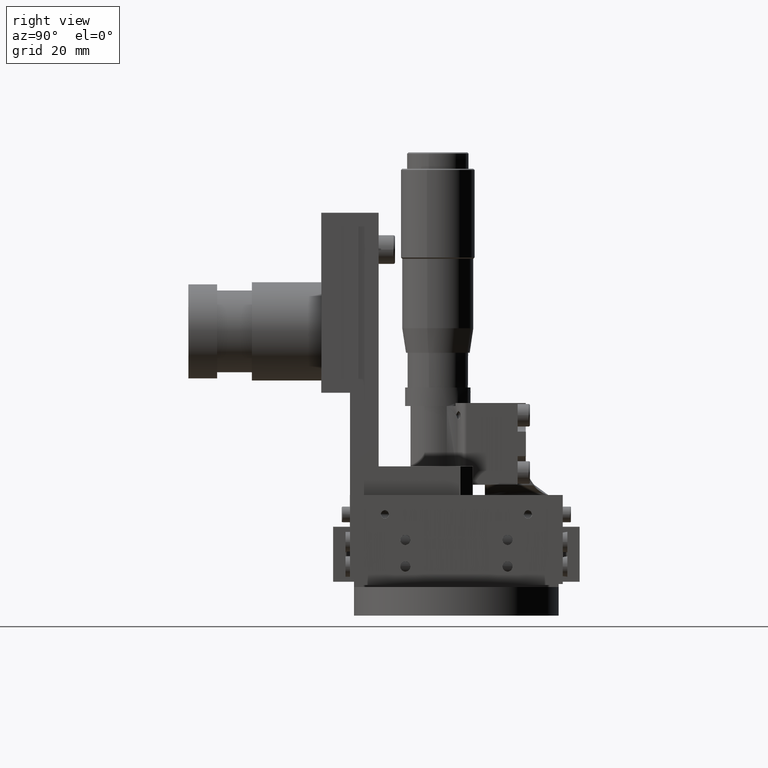
[diagram: clean part render]
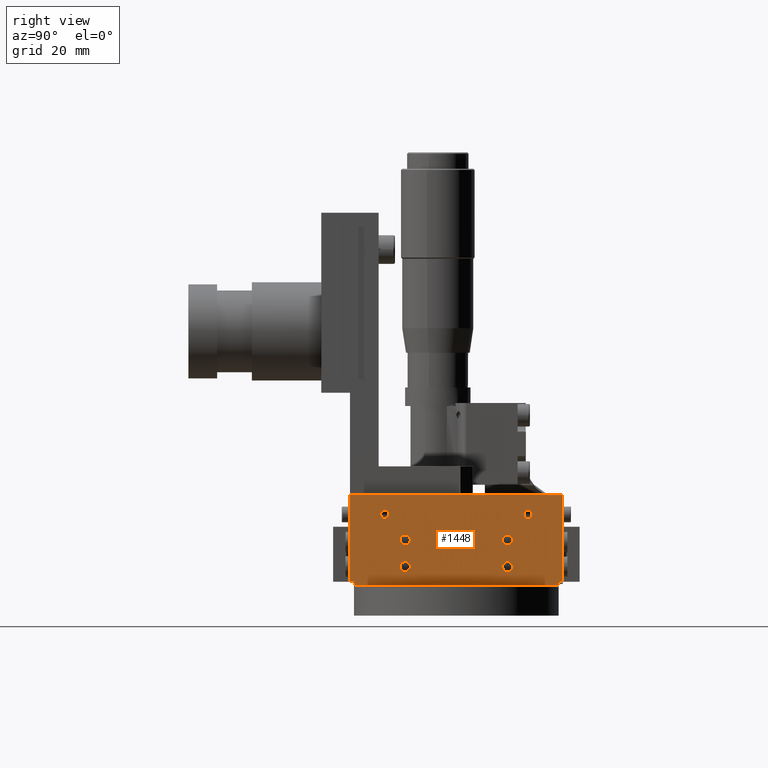
[diagram: same view with one face highlighted and labeled with its STEP entity id]
A machine part, right view. The second image highlights one B-rep face of the part: STEP entity #1448.
In plain terms, the highlighted face is a freeform B-spline surface patch.
Its self-contained STEP definition (entity closure, byte-faithful):
#41=FACE_BOUND('',#3456,.T.);
#42=FACE_BOUND('',#3457,.T.);
#43=FACE_BOUND('',#3458,.T.);
#44=FACE_BOUND('',#3459,.T.);
#45=FACE_BOUND('',#3460,.T.);
#46=FACE_BOUND('',#3461,.T.);
#243=B_SPLINE_SURFACE_WITH_KNOTS('',1,1,((#41421,#41422),(#41423,#41424)),
 .UNSPECIFIED.,.F.,.F.,.F.,(2,2),(2,2),(-2.32000000000012,24.3200000000001),
(-6.32008011386648,56.3200801138666),.UNSPECIFIED.);
#244=B_SPLINE_SURFACE_WITH_KNOTS('',1,1,((#41425,#41426),(#41427,#41428)),
 .UNSPECIFIED.,.F.,.F.,.F.,(2,2),(2,2),(-30.1288955808485,30.1288955808485),
(-26.260150418331,-12.7398495816685),.UNSPECIFIED.);
#257=B_SPLINE_SURFACE_WITH_KNOTS('',1,1,((#42289,#42290),(#42291,#42292)),
 .UNSPECIFIED.,.F.,.F.,.F.,(2,2),(2,2),(-0.320000000000008,2.32),(-1.2200801138663,
12.2200801138664),.UNSPECIFIED.);
#258=B_SPLINE_SURFACE_WITH_KNOTS('',1,1,((#42293,#42294),(#42295,#42296)),
 .UNSPECIFIED.,.F.,.F.,.F.,(2,2),(2,2),(-0.228094174759248,1.22809417475917),
(-1.12088151995594,11.1208815199555),.UNSPECIFIED.);
#264=B_SPLINE_SURFACE_WITH_KNOTS('',1,1,((#42317,#42318),(#42319,#42320)),
 .UNSPECIFIED.,.F.,.F.,.F.,(2,2),(2,2),(-2.32000000000003,0.319999999999984),
(-51.220080113866,-37.7799198861333),.UNSPECIFIED.);
#267=B_SPLINE_SURFACE_WITH_KNOTS('',1,1,((#42329,#42330),(#42331,#42332)),
 .UNSPECIFIED.,.F.,.F.,.F.,(2,2),(2,2),(-30.3352847922284,33.5048754355034),
(-14.6278947368421,10.8121052631579),.UNSPECIFIED.);
#268=B_SPLINE_SURFACE_WITH_KNOTS('',1,1,((#42333,#42334),(#42335,#42336)),
 .UNSPECIFIED.,.F.,.F.,.F.,(2,2),(2,2),(-0.228094174759257,1.22809417475928),
(-1.12088151995591,11.1208815199556),.UNSPECIFIED.);
#324=B_SPLINE_SURFACE_WITH_KNOTS('',1,1,((#43781,#43782),(#43783,#43784)),
 .UNSPECIFIED.,.F.,.F.,.F.,(2,2),(2,2),(-30.1617532305099,30.16175323051),
(-31.3601504183312,31.3601504183314),.UNSPECIFIED.);
#339=B_SPLINE_SURFACE_WITH_KNOTS('',1,1,((#44237,#44238),(#44239,#44240)),
 .UNSPECIFIED.,.F.,.F.,.F.,(2,2),(2,2),(-17.1278947368444,38.3121052631834),
(-30.3352847922294,33.5048754355035),.UNSPECIFIED.);
#1448=ADVANCED_FACE('',(#2436,#41,#42,#43,#44,#45,#46),#243,.T.);
#2436=FACE_OUTER_BOUND('',#3455,.T.);
#3455=EDGE_LOOP('',(#5705,#5706,#5707,#5708,#5709,#5710,#5711,#5712));
#3456=EDGE_LOOP('',(#5713,#5714));
#3457=EDGE_LOOP('',(#5715,#5716));
#3458=EDGE_LOOP('',(#5717,#5718));
#3459=EDGE_LOOP('',(#5719,#5720));
#3460=EDGE_LOOP('',(#5721,#5722));
#3461=EDGE_LOOP('',(#5723,#5724));
#5705=ORIENTED_EDGE('',*,*,#25772,.T.);
#5706=ORIENTED_EDGE('',*,*,#25773,.T.);
#5707=ORIENTED_EDGE('',*,*,#25774,.T.);
#5708=ORIENTED_EDGE('',*,*,#25775,.T.);
#5709=ORIENTED_EDGE('',*,*,#25776,.T.);
#5710=ORIENTED_EDGE('',*,*,#25777,.T.);
#5711=ORIENTED_EDGE('',*,*,#25778,.T.);
#5712=ORIENTED_EDGE('',*,*,#25779,.T.);
#5713=ORIENTED_EDGE('',*,*,#25780,.T.);
#5714=ORIENTED_EDGE('',*,*,#25781,.T.);
#5715=ORIENTED_EDGE('',*,*,#25782,.T.);
#5716=ORIENTED_EDGE('',*,*,#25783,.T.);
#5717=ORIENTED_EDGE('',*,*,#25784,.T.);
#5718=ORIENTED_EDGE('',*,*,#25785,.T.);
#5719=ORIENTED_EDGE('',*,*,#25786,.T.);
#5720=ORIENTED_EDGE('',*,*,#25787,.T.);
#5721=ORIENTED_EDGE('',*,*,#25788,.T.);
#5722=ORIENTED_EDGE('',*,*,#25789,.T.);
#5723=ORIENTED_EDGE('',*,*,#25790,.T.);
#5724=ORIENTED_EDGE('',*,*,#25791,.T.);
#10163=(
BOUNDED_CURVE()
B_SPLINE_CURVE(2,(#52539,#52540,#52541,#52542,#52543),.UNSPECIFIED.,.F.,
 .F.)
B_SPLINE_CURVE_WITH_KNOTS((3,2,3),(0.,1.5707963267949,3.14159265358979),
 .UNSPECIFIED.)
CURVE()
GEOMETRIC_REPRESENTATION_ITEM()
RATIONAL_B_SPLINE_CURVE((1.,0.707106781186555,1.,0.707106781186555,1.))
REPRESENTATION_ITEM('')
);
#10164=(
BOUNDED_CURVE()
B_SPLINE_CURVE(2,(#52544,#52545,#52546,#52547,#52548),.UNSPECIFIED.,.F.,
 .F.)
B_SPLINE_CURVE_WITH_KNOTS((3,2,3),(0.,1.5707963267949,3.14159265358979),
 .UNSPECIFIED.)
CURVE()
GEOMETRIC_REPRESENTATION_ITEM()
RATIONAL_B_SPLINE_CURVE((1.,0.707106781186548,1.,0.707106781186548,1.))
REPRESENTATION_ITEM('')
);
#10165=(
BOUNDED_CURVE()
B_SPLINE_CURVE(2,(#52549,#52550,#52551,#52552,#52553),.UNSPECIFIED.,.F.,
 .F.)
B_SPLINE_CURVE_WITH_KNOTS((3,2,3),(0.,1.5707963267949,3.14159265358979),
 .UNSPECIFIED.)
CURVE()
GEOMETRIC_REPRESENTATION_ITEM()
RATIONAL_B_SPLINE_CURVE((1.,0.70710678118654,1.,0.70710678118654,1.))
REPRESENTATION_ITEM('')
);
#10166=(
BOUNDED_CURVE()
B_SPLINE_CURVE(2,(#52554,#52555,#52556,#52557,#52558),.UNSPECIFIED.,.F.,
 .F.)
B_SPLINE_CURVE_WITH_KNOTS((3,2,3),(0.,1.5707963267949,3.14159265358979),
 .UNSPECIFIED.)
CURVE()
GEOMETRIC_REPRESENTATION_ITEM()
RATIONAL_B_SPLINE_CURVE((1.,0.707106781186548,1.,0.707106781186548,1.))
REPRESENTATION_ITEM('')
);
#10167=(
BOUNDED_CURVE()
B_SPLINE_CURVE(2,(#52559,#52560,#52561,#52562,#52563),.UNSPECIFIED.,.F.,
 .F.)
B_SPLINE_CURVE_WITH_KNOTS((3,2,3),(0.,1.5707963267949,3.14159265358979),
 .UNSPECIFIED.)
CURVE()
GEOMETRIC_REPRESENTATION_ITEM()
RATIONAL_B_SPLINE_CURVE((1.,0.707106781186555,1.,0.707106781186555,1.))
REPRESENTATION_ITEM('')
);
#10168=(
BOUNDED_CURVE()
B_SPLINE_CURVE(2,(#52564,#52565,#52566,#52567,#52568),.UNSPECIFIED.,.F.,
 .F.)
B_SPLINE_CURVE_WITH_KNOTS((3,2,3),(0.,1.5707963267949,3.14159265358979),
 .UNSPECIFIED.)
CURVE()
GEOMETRIC_REPRESENTATION_ITEM()
RATIONAL_B_SPLINE_CURVE((1.,0.707106781186548,1.,0.707106781186548,1.))
REPRESENTATION_ITEM('')
);
#10169=(
BOUNDED_CURVE()
B_SPLINE_CURVE(2,(#52569,#52570,#52571,#52572,#52573),.UNSPECIFIED.,.F.,
 .F.)
B_SPLINE_CURVE_WITH_KNOTS((3,2,3),(0.,1.5707963267949,3.14159265358979),
 .UNSPECIFIED.)
CURVE()
GEOMETRIC_REPRESENTATION_ITEM()
RATIONAL_B_SPLINE_CURVE((1.,0.70710678118654,1.,0.70710678118654,1.))
REPRESENTATION_ITEM('')
);
#10170=(
BOUNDED_CURVE()
B_SPLINE_CURVE(2,(#52574,#52575,#52576,#52577,#52578),.UNSPECIFIED.,.F.,
 .F.)
B_SPLINE_CURVE_WITH_KNOTS((3,2,3),(0.,1.5707963267949,3.14159265358979),
 .UNSPECIFIED.)
CURVE()
GEOMETRIC_REPRESENTATION_ITEM()
RATIONAL_B_SPLINE_CURVE((1.,0.707106781186548,1.,0.707106781186548,1.))
REPRESENTATION_ITEM('')
);
#10171=(
BOUNDED_CURVE()
B_SPLINE_CURVE(2,(#52579,#52580,#52581,#52582,#52583),.UNSPECIFIED.,.F.,
 .F.)
B_SPLINE_CURVE_WITH_KNOTS((3,2,3),(0.,1.93129408379433,3.86258816758865),
 .UNSPECIFIED.)
CURVE()
GEOMETRIC_REPRESENTATION_ITEM()
RATIONAL_B_SPLINE_CURVE((1.,0.707106781186561,1.,0.707106781186561,1.))
REPRESENTATION_ITEM('')
);
#10172=(
BOUNDED_CURVE()
B_SPLINE_CURVE(2,(#52584,#52585,#52586,#52587,#52588),.UNSPECIFIED.,.F.,
 .F.)
B_SPLINE_CURVE_WITH_KNOTS((3,2,3),(0.,1.93129408379433,3.86258816758865),
 .UNSPECIFIED.)
CURVE()
GEOMETRIC_REPRESENTATION_ITEM()
RATIONAL_B_SPLINE_CURVE((1.,0.707106781186548,1.,0.707106781186548,1.))
REPRESENTATION_ITEM('')
);
#10173=(
BOUNDED_CURVE()
B_SPLINE_CURVE(2,(#52589,#52590,#52591,#52592,#52593),.UNSPECIFIED.,.F.,
 .F.)
B_SPLINE_CURVE_WITH_KNOTS((3,2,3),(0.,1.93129408379433,3.86258816758865),
 .UNSPECIFIED.)
CURVE()
GEOMETRIC_REPRESENTATION_ITEM()
RATIONAL_B_SPLINE_CURVE((1.,0.707106781186542,1.,0.707106781186542,1.))
REPRESENTATION_ITEM('')
);
#10174=(
BOUNDED_CURVE()
B_SPLINE_CURVE(2,(#52594,#52595,#52596,#52597,#52598),.UNSPECIFIED.,.F.,
 .F.)
B_SPLINE_CURVE_WITH_KNOTS((3,2,3),(0.,1.93129408379433,3.86258816758865),
 .UNSPECIFIED.)
CURVE()
GEOMETRIC_REPRESENTATION_ITEM()
RATIONAL_B_SPLINE_CURVE((1.,0.707106781186548,1.,0.707106781186548,1.))
REPRESENTATION_ITEM('')
);
#10175=(
BOUNDED_CURVE()
B_SPLINE_CURVE(2,(#52599,#52600,#52601,#52602,#52603),.UNSPECIFIED.,.F.,
 .F.)
B_SPLINE_CURVE_WITH_KNOTS((3,2,3),(0.,1.93129408379433,3.86258816758865),
 .UNSPECIFIED.)
CURVE()
GEOMETRIC_REPRESENTATION_ITEM()
RATIONAL_B_SPLINE_CURVE((1.,0.707106781186545,1.,0.707106781186545,1.))
REPRESENTATION_ITEM('')
);
#10176=(
BOUNDED_CURVE()
B_SPLINE_CURVE(2,(#52604,#52605,#52606,#52607,#52608),.UNSPECIFIED.,.F.,
 .F.)
B_SPLINE_CURVE_WITH_KNOTS((3,2,3),(0.,1.93129408379433,3.86258816758865),
 .UNSPECIFIED.)
CURVE()
GEOMETRIC_REPRESENTATION_ITEM()
RATIONAL_B_SPLINE_CURVE((1.,0.707106781186548,1.,0.707106781186548,1.))
REPRESENTATION_ITEM('')
);
#10177=(
BOUNDED_CURVE()
B_SPLINE_CURVE(2,(#52609,#52610,#52611,#52612,#52613),.UNSPECIFIED.,.F.,
 .F.)
B_SPLINE_CURVE_WITH_KNOTS((3,2,3),(0.,1.93129408379433,3.86258816758865),
 .UNSPECIFIED.)
CURVE()
GEOMETRIC_REPRESENTATION_ITEM()
RATIONAL_B_SPLINE_CURVE((1.,0.70710678118655,1.,0.70710678118655,1.))
REPRESENTATION_ITEM('')
);
#10178=(
BOUNDED_CURVE()
B_SPLINE_CURVE(2,(#52614,#52615,#52616,#52617,#52618),.UNSPECIFIED.,.F.,
 .F.)
B_SPLINE_CURVE_WITH_KNOTS((3,2,3),(0.,1.93129408379433,3.86258816758865),
 .UNSPECIFIED.)
CURVE()
GEOMETRIC_REPRESENTATION_ITEM()
RATIONAL_B_SPLINE_CURVE((1.,0.707106781186548,1.,0.707106781186548,1.))
REPRESENTATION_ITEM('')
);
#10179=(
BOUNDED_CURVE()
B_SPLINE_CURVE(2,(#52619,#52620,#52621,#52622,#52623),.UNSPECIFIED.,.F.,
 .F.)
B_SPLINE_CURVE_WITH_KNOTS((3,2,3),(0.,1.93129408379433,3.86258816758865),
 .UNSPECIFIED.)
CURVE()
GEOMETRIC_REPRESENTATION_ITEM()
RATIONAL_B_SPLINE_CURVE((1.,0.707106781186548,1.,0.707106781186548,1.))
REPRESENTATION_ITEM('')
);
#10180=(
BOUNDED_CURVE()
B_SPLINE_CURVE(2,(#52624,#52625,#52626,#52627,#52628),.UNSPECIFIED.,.F.,
 .F.)
B_SPLINE_CURVE_WITH_KNOTS((3,2,3),(0.,1.93129408379433,3.86258816758865),
 .UNSPECIFIED.)
CURVE()
GEOMETRIC_REPRESENTATION_ITEM()
RATIONAL_B_SPLINE_CURVE((1.,0.707106781186548,1.,0.707106781186548,1.))
REPRESENTATION_ITEM('')
);
#10181=(
BOUNDED_CURVE()
B_SPLINE_CURVE(2,(#52629,#52630,#52631,#52632,#52633),.UNSPECIFIED.,.F.,
 .F.)
B_SPLINE_CURVE_WITH_KNOTS((3,2,3),(0.,1.93129408379433,3.86258816758865),
 .UNSPECIFIED.)
CURVE()
GEOMETRIC_REPRESENTATION_ITEM()
RATIONAL_B_SPLINE_CURVE((1.,0.707106781186548,1.,0.707106781186548,1.))
REPRESENTATION_ITEM('')
);
#10182=(
BOUNDED_CURVE()
B_SPLINE_CURVE(2,(#52634,#52635,#52636,#52637,#52638),.UNSPECIFIED.,.F.,
 .F.)
B_SPLINE_CURVE_WITH_KNOTS((3,2,3),(0.,1.93129408379433,3.86258816758865),
 .UNSPECIFIED.)
CURVE()
GEOMETRIC_REPRESENTATION_ITEM()
RATIONAL_B_SPLINE_CURVE((1.,0.707106781186548,1.,0.707106781186548,1.))
REPRESENTATION_ITEM('')
);
#10183=(
BOUNDED_CURVE()
B_SPLINE_CURVE(2,(#52639,#52640,#52641,#52642,#52643),.UNSPECIFIED.,.F.,
 .F.)
B_SPLINE_CURVE_WITH_KNOTS((3,2,3),(0.,1.93129408379433,3.86258816758865),
 .UNSPECIFIED.)
CURVE()
GEOMETRIC_REPRESENTATION_ITEM()
RATIONAL_B_SPLINE_CURVE((1.,0.707106781186559,1.,0.707106781186559,1.))
REPRESENTATION_ITEM('')
);
#10184=(
BOUNDED_CURVE()
B_SPLINE_CURVE(2,(#52644,#52645,#52646,#52647,#52648),.UNSPECIFIED.,.F.,
 .F.)
B_SPLINE_CURVE_WITH_KNOTS((3,2,3),(0.,1.93129408379433,3.86258816758865),
 .UNSPECIFIED.)
CURVE()
GEOMETRIC_REPRESENTATION_ITEM()
RATIONAL_B_SPLINE_CURVE((1.,0.707106781186548,1.,0.707106781186548,1.))
REPRESENTATION_ITEM('')
);
#10185=(
BOUNDED_CURVE()
B_SPLINE_CURVE(2,(#52649,#52650,#52651,#52652,#52653),.UNSPECIFIED.,.F.,
 .F.)
B_SPLINE_CURVE_WITH_KNOTS((3,2,3),(0.,1.93129408379433,3.86258816758865),
 .UNSPECIFIED.)
CURVE()
GEOMETRIC_REPRESENTATION_ITEM()
RATIONAL_B_SPLINE_CURVE((1.,0.707106781186536,1.,0.707106781186536,1.))
REPRESENTATION_ITEM('')
);
#10186=(
BOUNDED_CURVE()
B_SPLINE_CURVE(2,(#52654,#52655,#52656,#52657,#52658),.UNSPECIFIED.,.F.,
 .F.)
B_SPLINE_CURVE_WITH_KNOTS((3,2,3),(0.,1.93129408379433,3.86258816758865),
 .UNSPECIFIED.)
CURVE()
GEOMETRIC_REPRESENTATION_ITEM()
RATIONAL_B_SPLINE_CURVE((1.,0.707106781186548,1.,0.707106781186548,1.))
REPRESENTATION_ITEM('')
);
#12967=PCURVE('',#243,#18257);
#12968=PCURVE('',#243,#18258);
#12969=PCURVE('',#243,#18259);
#12970=PCURVE('',#243,#18260);
#12971=PCURVE('',#243,#18261);
#12972=PCURVE('',#243,#18262);
#12973=PCURVE('',#243,#18263);
#12974=PCURVE('',#243,#18264);
#12975=PCURVE('',#243,#18265);
#12976=PCURVE('',#243,#18266);
#12977=PCURVE('',#243,#18267);
#12978=PCURVE('',#243,#18268);
#12979=PCURVE('',#243,#18269);
#12980=PCURVE('',#243,#18270);
#12981=PCURVE('',#243,#18271);
#12982=PCURVE('',#243,#18272);
#12983=PCURVE('',#243,#18273);
#12984=PCURVE('',#243,#18274);
#12985=PCURVE('',#243,#18275);
#12986=PCURVE('',#243,#18276);
#12988=PCURVE('',#244,#18278);
#13158=PCURVE('',#35863,#18448);
#13164=PCURVE('',#35864,#18454);
#13166=PCURVE('',#35865,#18456);
#13172=PCURVE('',#35866,#18462);
#13174=PCURVE('',#35867,#18464);
#13182=PCURVE('',#35868,#18472);
#13184=PCURVE('',#35869,#18474);
#13192=PCURVE('',#35870,#18482);
#13200=PCURVE('',#35874,#18490);
#13210=PCURVE('',#35875,#18500);
#13227=PCURVE('',#35880,#18517);
#13237=PCURVE('',#35881,#18527);
#13264=PCURVE('',#257,#18554);
#13268=PCURVE('',#258,#18558);
#13299=PCURVE('',#264,#18589);
#13328=PCURVE('',#267,#18618);
#13336=PCURVE('',#268,#18626);
#14076=PCURVE('',#324,#19366);
#14306=PCURVE('',#339,#19596);
#18257=DEFINITIONAL_REPRESENTATION('',(#29384),#78139);
#18258=DEFINITIONAL_REPRESENTATION('',(#29386),#78139);
#18259=DEFINITIONAL_REPRESENTATION('',(#29388),#78139);
#18260=DEFINITIONAL_REPRESENTATION('',(#29390),#78139);
#18261=DEFINITIONAL_REPRESENTATION('',(#29392),#78139);
#18262=DEFINITIONAL_REPRESENTATION('',(#29394),#78139);
#18263=DEFINITIONAL_REPRESENTATION('',(#29396),#78139);
#18264=DEFINITIONAL_REPRESENTATION('',(#29398),#78139);
#18265=DEFINITIONAL_REPRESENTATION('',(#10164),#78139);
#18266=DEFINITIONAL_REPRESENTATION('',(#10166),#78139);
#18267=DEFINITIONAL_REPRESENTATION('',(#10168),#78139);
#18268=DEFINITIONAL_REPRESENTATION('',(#10170),#78139);
#18269=DEFINITIONAL_REPRESENTATION('',(#10172),#78139);
#18270=DEFINITIONAL_REPRESENTATION('',(#10174),#78139);
#18271=DEFINITIONAL_REPRESENTATION('',(#10176),#78139);
#18272=DEFINITIONAL_REPRESENTATION('',(#10178),#78139);
#18273=DEFINITIONAL_REPRESENTATION('',(#10180),#78139);
#18274=DEFINITIONAL_REPRESENTATION('',(#10182),#78139);
#18275=DEFINITIONAL_REPRESENTATION('',(#10184),#78139);
#18276=DEFINITIONAL_REPRESENTATION('',(#10186),#78139);
#18278=DEFINITIONAL_REPRESENTATION('',(#29401),#78139);
#18448=DEFINITIONAL_REPRESENTATION('',(#29636),#78139);
#18454=DEFINITIONAL_REPRESENTATION('',(#29643),#78139);
#18456=DEFINITIONAL_REPRESENTATION('',(#29646),#78139);
#18462=DEFINITIONAL_REPRESENTATION('',(#29653),#78139);
#18464=DEFINITIONAL_REPRESENTATION('',(#29656),#78139);
#18472=DEFINITIONAL_REPRESENTATION('',(#29665),#78139);
#18474=DEFINITIONAL_REPRESENTATION('',(#29668),#78139);
#18482=DEFINITIONAL_REPRESENTATION('',(#29677),#78139);
#18490=DEFINITIONAL_REPRESENTATION('',(#29689),#78139);
#18500=DEFINITIONAL_REPRESENTATION('',(#29704),#78139);
#18517=DEFINITIONAL_REPRESENTATION('',(#29727),#78139);
#18527=DEFINITIONAL_REPRESENTATION('',(#29742),#78139);
#18554=DEFINITIONAL_REPRESENTATION('',(#29779),#78139);
#18558=DEFINITIONAL_REPRESENTATION('',(#29785),#78139);
#18589=DEFINITIONAL_REPRESENTATION('',(#29831),#78139);
#18618=DEFINITIONAL_REPRESENTATION('',(#29879),#78139);
#18626=DEFINITIONAL_REPRESENTATION('',(#29884),#78139);
#19366=DEFINITIONAL_REPRESENTATION('',(#30696),#78139);
#19596=DEFINITIONAL_REPRESENTATION('',(#30939),#78139);
#22993=SURFACE_CURVE('',#29383,(#12967,#14076),.PCURVE_S1.);
#22994=SURFACE_CURVE('',#29385,(#12968,#14306),.PCURVE_S1.);
#22995=SURFACE_CURVE('',#29387,(#12969,#13268),.PCURVE_S1.);
#22996=SURFACE_CURVE('',#29389,(#12970,#13264),.PCURVE_S1.);
#22997=SURFACE_CURVE('',#29391,(#12971,#12988),.PCURVE_S1.);
#22998=SURFACE_CURVE('',#29393,(#12972,#13299),.PCURVE_S1.);
#22999=SURFACE_CURVE('',#29395,(#12973,#13336),.PCURVE_S1.);
#23000=SURFACE_CURVE('',#29397,(#12974,#13328),.PCURVE_S1.);
#23001=SURFACE_CURVE('',#10163,(#12975,#13227),.PCURVE_S1.);
#23002=SURFACE_CURVE('',#10165,(#12976,#13237),.PCURVE_S1.);
#23003=SURFACE_CURVE('',#10167,(#12977,#13200),.PCURVE_S1.);
#23004=SURFACE_CURVE('',#10169,(#12978,#13210),.PCURVE_S1.);
#23005=SURFACE_CURVE('',#10171,(#12979,#13184),.PCURVE_S1.);
#23006=SURFACE_CURVE('',#10173,(#12980,#13192),.PCURVE_S1.);
#23007=SURFACE_CURVE('',#10175,(#12981,#13174),.PCURVE_S1.);
#23008=SURFACE_CURVE('',#10177,(#12982,#13182),.PCURVE_S1.);
#23009=SURFACE_CURVE('',#10179,(#12983,#13166),.PCURVE_S1.);
#23010=SURFACE_CURVE('',#10181,(#12984,#13172),.PCURVE_S1.);
#23011=SURFACE_CURVE('',#10183,(#12985,#13158),.PCURVE_S1.);
#23012=SURFACE_CURVE('',#10185,(#12986,#13164),.PCURVE_S1.);
#25772=EDGE_CURVE('',#34393,#34394,#22993,.T.);
#25773=EDGE_CURVE('',#34394,#34395,#22994,.T.);
#25774=EDGE_CURVE('',#34395,#34396,#22995,.T.);
#25775=EDGE_CURVE('',#34396,#34397,#22996,.T.);
#25776=EDGE_CURVE('',#34397,#34398,#22997,.T.);
#25777=EDGE_CURVE('',#34398,#34399,#22998,.T.);
#25778=EDGE_CURVE('',#34399,#34400,#22999,.T.);
#25779=EDGE_CURVE('',#34400,#34393,#23000,.T.);
#25780=EDGE_CURVE('',#34402,#34401,#23001,.T.);
#25781=EDGE_CURVE('',#34401,#34402,#23002,.T.);
#25782=EDGE_CURVE('',#34404,#34403,#23003,.T.);
#25783=EDGE_CURVE('',#34403,#34404,#23004,.T.);
#25784=EDGE_CURVE('',#34406,#34405,#23005,.T.);
#25785=EDGE_CURVE('',#34405,#34406,#23006,.T.);
#25786=EDGE_CURVE('',#34408,#34407,#23007,.T.);
#25787=EDGE_CURVE('',#34407,#34408,#23008,.T.);
#25788=EDGE_CURVE('',#34410,#34409,#23009,.T.);
#25789=EDGE_CURVE('',#34409,#34410,#23010,.T.);
#25790=EDGE_CURVE('',#34412,#34411,#23011,.T.);
#25791=EDGE_CURVE('',#34411,#34412,#23012,.T.);
#29383=B_SPLINE_CURVE_WITH_KNOTS('',1,(#52507,#52508),.UNSPECIFIED.,.F.,
 .F.,(2,2),(0.,52.0000000000004),.UNSPECIFIED.);
#29384=B_SPLINE_CURVE_WITH_KNOTS('',1,(#52509,#52510),.UNSPECIFIED.,.F.,
 .F.,(2,2),(0.,52.0000000000004),.UNSPECIFIED.);
#29385=B_SPLINE_CURVE_WITH_KNOTS('',1,(#52511,#52512),.UNSPECIFIED.,.F.,
 .F.,(2,2),(0.,21.),.UNSPECIFIED.);
#29386=B_SPLINE_CURVE_WITH_KNOTS('',1,(#52513,#52514),.UNSPECIFIED.,.F.,
 .F.,(2,2),(0.,21.),.UNSPECIFIED.);
#29387=B_SPLINE_CURVE_WITH_KNOTS('',1,(#52515,#52516),.UNSPECIFIED.,.F.,
 .F.,(2,2),(-0.999999999999994,0.),.UNSPECIFIED.);
#29388=B_SPLINE_CURVE_WITH_KNOTS('',1,(#52517,#52518),.UNSPECIFIED.,.F.,
 .F.,(2,2),(-0.999999999999994,0.),.UNSPECIFIED.);
#29389=B_SPLINE_CURVE_WITH_KNOTS('',1,(#52519,#52520),.UNSPECIFIED.,.F.,
 .F.,(2,2),(-1.,0.),.UNSPECIFIED.);
#29390=B_SPLINE_CURVE_WITH_KNOTS('',1,(#52521,#52522),.UNSPECIFIED.,.F.,
 .F.,(2,2),(-1.,0.),.UNSPECIFIED.);
#29391=B_SPLINE_CURVE_WITH_KNOTS('',1,(#52523,#52524),.UNSPECIFIED.,.F.,
 .F.,(2,2),(-50.,0.),.UNSPECIFIED.);
#29392=B_SPLINE_CURVE_WITH_KNOTS('',1,(#52525,#52526),.UNSPECIFIED.,.F.,
 .F.,(2,2),(-50.,0.),.UNSPECIFIED.);
#29393=B_SPLINE_CURVE_WITH_KNOTS('',1,(#52527,#52528),.UNSPECIFIED.,.F.,
 .F.,(2,2),(0.,1.),.UNSPECIFIED.);
#29394=B_SPLINE_CURVE_WITH_KNOTS('',1,(#52529,#52530),.UNSPECIFIED.,.F.,
 .F.,(2,2),(0.,1.),.UNSPECIFIED.);
#29395=B_SPLINE_CURVE_WITH_KNOTS('',1,(#52531,#52532),.UNSPECIFIED.,.F.,
 .F.,(2,2),(-0.999999999999994,0.),.UNSPECIFIED.);
#29396=B_SPLINE_CURVE_WITH_KNOTS('',1,(#52533,#52534),.UNSPECIFIED.,.F.,
 .F.,(2,2),(-0.999999999999994,0.),.UNSPECIFIED.);
#29397=B_SPLINE_CURVE_WITH_KNOTS('',1,(#52535,#52536),.UNSPECIFIED.,.F.,
 .F.,(2,2),(0.,21.),.UNSPECIFIED.);
#29398=B_SPLINE_CURVE_WITH_KNOTS('',1,(#52537,#52538),.UNSPECIFIED.,.F.,
 .F.,(2,2),(0.,21.),.UNSPECIFIED.);
#29401=B_SPLINE_CURVE_WITH_KNOTS('',1,(#52663,#52664),.UNSPECIFIED.,.F.,
 .F.,(2,2),(-50.,0.),.UNSPECIFIED.);
#29636=B_SPLINE_CURVE_WITH_KNOTS('',1,(#53419,#53420),.UNSPECIFIED.,.F.,
 .F.,(2,2),(0.,3.86258816758865),.UNSPECIFIED.);
#29643=B_SPLINE_CURVE_WITH_KNOTS('',1,(#53443,#53444),.UNSPECIFIED.,.F.,
 .F.,(2,2),(0.,3.86258816758865),.UNSPECIFIED.);
#29646=B_SPLINE_CURVE_WITH_KNOTS('',1,(#53449,#53450),.UNSPECIFIED.,.F.,
 .F.,(2,2),(0.,3.86258816758865),.UNSPECIFIED.);
#29653=B_SPLINE_CURVE_WITH_KNOTS('',1,(#53473,#53474),.UNSPECIFIED.,.F.,
 .F.,(2,2),(0.,3.86258816758865),.UNSPECIFIED.);
#29656=B_SPLINE_CURVE_WITH_KNOTS('',1,(#53479,#53480),.UNSPECIFIED.,.F.,
 .F.,(2,2),(0.,3.86258816758865),.UNSPECIFIED.);
#29665=B_SPLINE_CURVE_WITH_KNOTS('',1,(#53513,#53514),.UNSPECIFIED.,.F.,
 .F.,(2,2),(0.,3.86258816758865),.UNSPECIFIED.);
#29668=B_SPLINE_CURVE_WITH_KNOTS('',1,(#53519,#53520),.UNSPECIFIED.,.F.,
 .F.,(2,2),(0.,3.86258816758865),.UNSPECIFIED.);
#29677=B_SPLINE_CURVE_WITH_KNOTS('',1,(#53553,#53554),.UNSPECIFIED.,.F.,
 .F.,(2,2),(0.,3.86258816758865),.UNSPECIFIED.);
#29689=B_SPLINE_CURVE_WITH_KNOTS('',1,(#53608,#53609),.UNSPECIFIED.,.F.,
 .F.,(2,2),(0.,3.14159265358979),.UNSPECIFIED.);
#29704=B_SPLINE_CURVE_WITH_KNOTS('',1,(#53670,#53671),.UNSPECIFIED.,.F.,
 .F.,(2,2),(0.,3.14159265358979),.UNSPECIFIED.);
#29727=B_SPLINE_CURVE_WITH_KNOTS('',1,(#53745,#53746),.UNSPECIFIED.,.F.,
 .F.,(2,2),(0.,3.14159265358979),.UNSPECIFIED.);
#29742=B_SPLINE_CURVE_WITH_KNOTS('',1,(#53807,#53808),.UNSPECIFIED.,.F.,
 .F.,(2,2),(0.,3.14159265358979),.UNSPECIFIED.);
#29779=B_SPLINE_CURVE_WITH_KNOTS('',1,(#53906,#53907),.UNSPECIFIED.,.F.,
 .F.,(2,2),(-1.,0.),.UNSPECIFIED.);
#29785=B_SPLINE_CURVE_WITH_KNOTS('',1,(#53918,#53919),.UNSPECIFIED.,.F.,
 .F.,(2,2),(-0.999999999999994,0.),.UNSPECIFIED.);
#29831=B_SPLINE_CURVE_WITH_KNOTS('',1,(#54010,#54011),.UNSPECIFIED.,.F.,
 .F.,(2,2),(0.,1.),.UNSPECIFIED.);
#29879=B_SPLINE_CURVE_WITH_KNOTS('',1,(#54106,#54107),.UNSPECIFIED.,.F.,
 .F.,(2,2),(0.,21.),.UNSPECIFIED.);
#29884=B_SPLINE_CURVE_WITH_KNOTS('',1,(#54146,#54147),.UNSPECIFIED.,.F.,
 .F.,(2,2),(-0.999999999999994,0.),.UNSPECIFIED.);
#30696=B_SPLINE_CURVE_WITH_KNOTS('',1,(#57131,#57132),.UNSPECIFIED.,.F.,
 .F.,(2,2),(0.,52.0000000000004),.UNSPECIFIED.);
#30939=B_SPLINE_CURVE_WITH_KNOTS('',1,(#57956,#57957),.UNSPECIFIED.,.F.,
 .F.,(2,2),(0.,21.),.UNSPECIFIED.);
#34393=VERTEX_POINT('',#46194);
#34394=VERTEX_POINT('',#46195);
#34395=VERTEX_POINT('',#46196);
#34396=VERTEX_POINT('',#46197);
#34397=VERTEX_POINT('',#46198);
#34398=VERTEX_POINT('',#46199);
#34399=VERTEX_POINT('',#46200);
#34400=VERTEX_POINT('',#46201);
#34401=VERTEX_POINT('',#46202);
#34402=VERTEX_POINT('',#46203);
#34403=VERTEX_POINT('',#46204);
#34404=VERTEX_POINT('',#46205);
#34405=VERTEX_POINT('',#46206);
#34406=VERTEX_POINT('',#46207);
#34407=VERTEX_POINT('',#46208);
#34408=VERTEX_POINT('',#46209);
#34409=VERTEX_POINT('',#46210);
#34410=VERTEX_POINT('',#46211);
#34411=VERTEX_POINT('',#46212);
#34412=VERTEX_POINT('',#46213);
#35863=(
BOUNDED_SURFACE()
B_SPLINE_SURFACE(1,2,((#41901,#41902,#41903,#41904,#41905,#41906,#41907,
#41908,#41909),(#41910,#41911,#41912,#41913,#41914,#41915,#41916,#41917,
#41918)),.UNSPECIFIED.,.F.,.F.,.F.)
B_SPLINE_SURFACE_WITH_KNOTS((2,2),(3,2,2,2,3),(0.,6.24410154287966),(0.,
1.5707963267949,3.14159265358979,4.71238898038469,6.28318530717959),
 .UNSPECIFIED.)
GEOMETRIC_REPRESENTATION_ITEM()
RATIONAL_B_SPLINE_SURFACE(((1.,0.707106781186548,1.,0.707106781186548,1.,
0.707106781186548,1.,0.707106781186548,1.),(1.,0.707106781186548,1.,0.707106781186548,
1.,0.707106781186548,1.,0.707106781186548,1.)))
REPRESENTATION_ITEM('')
SURFACE()
);
#35864=(
BOUNDED_SURFACE()
B_SPLINE_SURFACE(1,2,((#41919,#41920,#41921,#41922,#41923,#41924,#41925,
#41926,#41927),(#41928,#41929,#41930,#41931,#41932,#41933,#41934,#41935,
#41936)),.UNSPECIFIED.,.F.,.F.,.F.)
B_SPLINE_SURFACE_WITH_KNOTS((2,2),(3,2,2,2,3),(0.,6.24410154287966),(0.,
1.5707963267949,3.14159265358979,4.71238898038469,6.28318530717959),
 .UNSPECIFIED.)
GEOMETRIC_REPRESENTATION_ITEM()
RATIONAL_B_SPLINE_SURFACE(((1.,0.707106781186548,1.,0.707106781186548,1.,
0.707106781186548,1.,0.707106781186548,1.),(1.,0.707106781186548,1.,0.707106781186548,
1.,0.707106781186548,1.,0.707106781186548,1.)))
REPRESENTATION_ITEM('')
SURFACE()
);
#35865=(
BOUNDED_SURFACE()
B_SPLINE_SURFACE(1,2,((#41937,#41938,#41939,#41940,#41941,#41942,#41943,
#41944,#41945),(#41946,#41947,#41948,#41949,#41950,#41951,#41952,#41953,
#41954)),.UNSPECIFIED.,.F.,.F.,.F.)
B_SPLINE_SURFACE_WITH_KNOTS((2,2),(3,2,2,2,3),(0.,6.24410154287977),(0.,
1.5707963267949,3.14159265358979,4.71238898038469,6.28318530717959),
 .UNSPECIFIED.)
GEOMETRIC_REPRESENTATION_ITEM()
RATIONAL_B_SPLINE_SURFACE(((1.,0.707106781186548,1.,0.707106781186548,1.,
0.707106781186548,1.,0.707106781186548,1.),(1.,0.707106781186548,1.,0.707106781186548,
1.,0.707106781186548,1.,0.707106781186548,1.)))
REPRESENTATION_ITEM('')
SURFACE()
);
#35866=(
BOUNDED_SURFACE()
B_SPLINE_SURFACE(1,2,((#41955,#41956,#41957,#41958,#41959,#41960,#41961,
#41962,#41963),(#41964,#41965,#41966,#41967,#41968,#41969,#41970,#41971,
#41972)),.UNSPECIFIED.,.F.,.F.,.F.)
B_SPLINE_SURFACE_WITH_KNOTS((2,2),(3,2,2,2,3),(0.,6.24410154287977),(0.,
1.5707963267949,3.14159265358979,4.71238898038469,6.28318530717959),
 .UNSPECIFIED.)
GEOMETRIC_REPRESENTATION_ITEM()
RATIONAL_B_SPLINE_SURFACE(((1.,0.707106781186548,1.,0.707106781186548,1.,
0.707106781186548,1.,0.707106781186548,1.),(1.,0.707106781186548,1.,0.707106781186548,
1.,0.707106781186548,1.,0.707106781186548,1.)))
REPRESENTATION_ITEM('')
SURFACE()
);
#35867=(
BOUNDED_SURFACE()
B_SPLINE_SURFACE(1,2,((#41973,#41974,#41975,#41976,#41977,#41978,#41979,
#41980,#41981),(#41982,#41983,#41984,#41985,#41986,#41987,#41988,#41989,
#41990)),.UNSPECIFIED.,.F.,.F.,.F.)
B_SPLINE_SURFACE_WITH_KNOTS((2,2),(3,2,2,2,3),(0.,6.2443107955857),(0.,
1.5707963267949,3.14159265358979,4.71238898038469,6.28318530717959),
 .UNSPECIFIED.)
GEOMETRIC_REPRESENTATION_ITEM()
RATIONAL_B_SPLINE_SURFACE(((1.,0.707106781186548,1.,0.707106781186548,1.,
0.707106781186548,1.,0.707106781186548,1.),(1.,0.707106781186548,1.,0.707106781186548,
1.,0.707106781186548,1.,0.707106781186548,1.)))
REPRESENTATION_ITEM('')
SURFACE()
);
#35868=(
BOUNDED_SURFACE()
B_SPLINE_SURFACE(1,2,((#41991,#41992,#41993,#41994,#41995,#41996,#41997,
#41998,#41999),(#42000,#42001,#42002,#42003,#42004,#42005,#42006,#42007,
#42008)),.UNSPECIFIED.,.F.,.F.,.F.)
B_SPLINE_SURFACE_WITH_KNOTS((2,2),(3,2,2,2,3),(0.,6.2443107955857),(0.,
1.5707963267949,3.14159265358979,4.71238898038469,6.28318530717959),
 .UNSPECIFIED.)
GEOMETRIC_REPRESENTATION_ITEM()
RATIONAL_B_SPLINE_SURFACE(((1.,0.707106781186548,1.,0.707106781186548,1.,
0.707106781186548,1.,0.707106781186548,1.),(1.,0.707106781186548,1.,0.707106781186548,
1.,0.707106781186548,1.,0.707106781186548,1.)))
REPRESENTATION_ITEM('')
SURFACE()
);
#35869=(
BOUNDED_SURFACE()
B_SPLINE_SURFACE(1,2,((#42009,#42010,#42011,#42012,#42013,#42014,#42015,
#42016,#42017),(#42018,#42019,#42020,#42021,#42022,#42023,#42024,#42025,
#42026)),.UNSPECIFIED.,.F.,.F.,.F.)
B_SPLINE_SURFACE_WITH_KNOTS((2,2),(3,2,2,2,3),(0.,6.24431079558573),(0.,
1.5707963267949,3.14159265358979,4.71238898038469,6.28318530717959),
 .UNSPECIFIED.)
GEOMETRIC_REPRESENTATION_ITEM()
RATIONAL_B_SPLINE_SURFACE(((1.,0.707106781186548,1.,0.707106781186548,1.,
0.707106781186548,1.,0.707106781186548,1.),(1.,0.707106781186548,1.,0.707106781186548,
1.,0.707106781186548,1.,0.707106781186548,1.)))
REPRESENTATION_ITEM('')
SURFACE()
);
#35870=(
BOUNDED_SURFACE()
B_SPLINE_SURFACE(1,2,((#42027,#42028,#42029,#42030,#42031,#42032,#42033,
#42034,#42035),(#42036,#42037,#42038,#42039,#42040,#42041,#42042,#42043,
#42044)),.UNSPECIFIED.,.F.,.F.,.F.)
B_SPLINE_SURFACE_WITH_KNOTS((2,2),(3,2,2,2,3),(0.,6.24431079558573),(0.,
1.5707963267949,3.14159265358979,4.71238898038469,6.28318530717959),
 .UNSPECIFIED.)
GEOMETRIC_REPRESENTATION_ITEM()
RATIONAL_B_SPLINE_SURFACE(((1.,0.707106781186548,1.,0.707106781186548,1.,
0.707106781186548,1.,0.707106781186548,1.),(1.,0.707106781186548,1.,0.707106781186548,
1.,0.707106781186548,1.,0.707106781186548,1.)))
REPRESENTATION_ITEM('')
SURFACE()
);
#35874=(
BOUNDED_SURFACE()
B_SPLINE_SURFACE(1,2,((#42099,#42100,#42101,#42102,#42103,#42104,#42105,
#42106,#42107),(#42108,#42109,#42110,#42111,#42112,#42113,#42114,#42115,
#42116)),.UNSPECIFIED.,.F.,.F.,.F.)
B_SPLINE_SURFACE_WITH_KNOTS((2,2),(3,2,2,2,3),(0.,6.24312841751304),(0.,
1.5707963267949,3.14159265358979,4.71238898038469,6.28318530717959),
 .UNSPECIFIED.)
GEOMETRIC_REPRESENTATION_ITEM()
RATIONAL_B_SPLINE_SURFACE(((1.,0.707106781186548,1.,0.707106781186548,1.,
0.707106781186548,1.,0.707106781186548,1.),(1.,0.707106781186548,1.,0.707106781186548,
1.,0.707106781186548,1.,0.707106781186548,1.)))
REPRESENTATION_ITEM('')
SURFACE()
);
#35875=(
BOUNDED_SURFACE()
B_SPLINE_SURFACE(1,2,((#42117,#42118,#42119,#42120,#42121,#42122,#42123,
#42124,#42125),(#42126,#42127,#42128,#42129,#42130,#42131,#42132,#42133,
#42134)),.UNSPECIFIED.,.F.,.F.,.F.)
B_SPLINE_SURFACE_WITH_KNOTS((2,2),(3,2,2,2,3),(0.,6.24312841751304),(0.,
1.5707963267949,3.14159265358979,4.71238898038469,6.28318530717959),
 .UNSPECIFIED.)
GEOMETRIC_REPRESENTATION_ITEM()
RATIONAL_B_SPLINE_SURFACE(((1.,0.707106781186548,1.,0.707106781186548,1.,
0.707106781186548,1.,0.707106781186548,1.),(1.,0.707106781186548,1.,0.707106781186548,
1.,0.707106781186548,1.,0.707106781186548,1.)))
REPRESENTATION_ITEM('')
SURFACE()
);
#35880=(
BOUNDED_SURFACE()
B_SPLINE_SURFACE(1,2,((#42199,#42200,#42201,#42202,#42203,#42204,#42205,
#42206,#42207),(#42208,#42209,#42210,#42211,#42212,#42213,#42214,#42215,
#42216)),.UNSPECIFIED.,.F.,.F.,.F.)
B_SPLINE_SURFACE_WITH_KNOTS((2,2),(3,2,2,2,3),(0.,6.24306201382383),(0.,
1.5707963267949,3.14159265358979,4.71238898038469,6.28318530717959),
 .UNSPECIFIED.)
GEOMETRIC_REPRESENTATION_ITEM()
RATIONAL_B_SPLINE_SURFACE(((1.,0.707106781186548,1.,0.707106781186548,1.,
0.707106781186548,1.,0.707106781186548,1.),(1.,0.707106781186548,1.,0.707106781186548,
1.,0.707106781186548,1.,0.707106781186548,1.)))
REPRESENTATION_ITEM('')
SURFACE()
);
#35881=(
BOUNDED_SURFACE()
B_SPLINE_SURFACE(1,2,((#42217,#42218,#42219,#42220,#42221,#42222,#42223,
#42224,#42225),(#42226,#42227,#42228,#42229,#42230,#42231,#42232,#42233,
#42234)),.UNSPECIFIED.,.F.,.F.,.F.)
B_SPLINE_SURFACE_WITH_KNOTS((2,2),(3,2,2,2,3),(0.,6.24306201382383),(0.,
1.5707963267949,3.14159265358979,4.71238898038469,6.28318530717959),
 .UNSPECIFIED.)
GEOMETRIC_REPRESENTATION_ITEM()
RATIONAL_B_SPLINE_SURFACE(((1.,0.707106781186548,1.,0.707106781186548,1.,
0.707106781186548,1.,0.707106781186548,1.),(1.,0.707106781186548,1.,0.707106781186548,
1.,0.707106781186548,1.,0.707106781186548,1.)))
REPRESENTATION_ITEM('')
SURFACE()
);
#41421=CARTESIAN_POINT('',(220.091153440163,64.8860449572592,24.2757099897467));
#41422=CARTESIAN_POINT('',(220.132986954359,64.8860449572593,-38.364436268968));
#41423=CARTESIAN_POINT('',(220.091153440163,38.246044957259,24.2757099897467));
#41424=CARTESIAN_POINT('',(220.132986954359,38.2460449572591,-38.364436268968));
#41425=CARTESIAN_POINT('',(221.352099096434,62.5660449572592,23.0853672994045));
#41426=CARTESIAN_POINT('',(207.831801274856,62.5660449572592,23.0763379212079));
#41427=CARTESIAN_POINT('',(221.392341572712,62.5660449572593,-37.1724104245524));
#41428=CARTESIAN_POINT('',(207.872043751134,62.5660449572593,-37.181439802749));
#41901=CARTESIAN_POINT('',(214.497547554016,58.0660449572592,-18.3186152485145));
#41902=CARTESIAN_POINT('',(214.497547554016,56.8365449572592,-18.3186152485145));
#41903=CARTESIAN_POINT('',(214.498368661521,56.8365449572592,-19.5481149743309));
#41904=CARTESIAN_POINT('',(214.499189769026,56.8365449572592,-20.7776147001472));
#41905=CARTESIAN_POINT('',(214.499189769027,58.0660449572592,-20.7776147001472));
#41906=CARTESIAN_POINT('',(214.499189769026,59.2955449572592,-20.7776147001472));
#41907=CARTESIAN_POINT('',(214.498368661521,59.2955449572592,-19.5481149743309));
#41908=CARTESIAN_POINT('',(214.497547554016,59.2955449572592,-18.3186152485145));
#41909=CARTESIAN_POINT('',(214.497547554016,58.0660449572592,-18.3186152485145));
#41910=CARTESIAN_POINT('',(220.741647704434,58.0660449572592,-18.3144451967524));
#41911=CARTESIAN_POINT('',(220.741647704434,56.8365449572592,-18.3144451967524));
#41912=CARTESIAN_POINT('',(220.74246881194,56.8365449572592,-19.5439449225687));
#41913=CARTESIAN_POINT('',(220.743289919445,56.8365449572592,-20.7734446483851));
#41914=CARTESIAN_POINT('',(220.743289919445,58.0660449572592,-20.7734446483851));
#41915=CARTESIAN_POINT('',(220.743289919445,59.2955449572592,-20.7734446483851));
#41916=CARTESIAN_POINT('',(220.74246881194,59.2955449572592,-19.5439449225687));
#41917=CARTESIAN_POINT('',(220.741647704434,59.2955449572592,-18.3144451967524));
#41918=CARTESIAN_POINT('',(220.741647704434,58.0660449572592,-18.3144451967524));
#41919=CARTESIAN_POINT('',(214.497547554016,58.0660449572592,-18.3186152485145));
#41920=CARTESIAN_POINT('',(214.497547554016,56.8365449572592,-18.3186152485145));
#41921=CARTESIAN_POINT('',(214.498368661521,56.8365449572592,-19.5481149743309));
#41922=CARTESIAN_POINT('',(214.499189769026,56.8365449572592,-20.7776147001472));
#41923=CARTESIAN_POINT('',(214.499189769027,58.0660449572592,-20.7776147001472));
#41924=CARTESIAN_POINT('',(214.499189769026,59.2955449572592,-20.7776147001472));
#41925=CARTESIAN_POINT('',(214.498368661521,59.2955449572592,-19.5481149743309));
#41926=CARTESIAN_POINT('',(214.497547554016,59.2955449572592,-18.3186152485145));
#41927=CARTESIAN_POINT('',(214.497547554016,58.0660449572592,-18.3186152485145));
#41928=CARTESIAN_POINT('',(220.741647704434,58.0660449572592,-18.3144451967524));
#41929=CARTESIAN_POINT('',(220.741647704434,56.8365449572592,-18.3144451967524));
#41930=CARTESIAN_POINT('',(220.74246881194,56.8365449572592,-19.5439449225687));
#41931=CARTESIAN_POINT('',(220.743289919445,56.8365449572592,-20.7734446483851));
#41932=CARTESIAN_POINT('',(220.743289919445,58.0660449572592,-20.7734446483851));
#41933=CARTESIAN_POINT('',(220.743289919445,59.2955449572592,-20.7734446483851));
#41934=CARTESIAN_POINT('',(220.74246881194,59.2955449572592,-19.5439449225687));
#41935=CARTESIAN_POINT('',(220.741647704434,59.2955449572592,-18.3144451967524));
#41936=CARTESIAN_POINT('',(220.741647704434,58.0660449572592,-18.3144451967524));
#41937=CARTESIAN_POINT('',(214.480851590099,58.0660449572591,6.68137917638063));
#41938=CARTESIAN_POINT('',(214.480851590099,56.8365449572591,6.68137917638063));
#41939=CARTESIAN_POINT('',(214.481672697604,56.8365449572591,5.45187945056428));
#41940=CARTESIAN_POINT('',(214.482493805109,56.8365449572591,4.22237972474794));
#41941=CARTESIAN_POINT('',(214.482493805109,58.0660449572591,4.22237972474794));
#41942=CARTESIAN_POINT('',(214.482493805109,59.2955449572591,4.22237972474794));
#41943=CARTESIAN_POINT('',(214.481672697604,59.2955449572591,5.45187945056428));
#41944=CARTESIAN_POINT('',(214.480851590099,59.2955449572591,6.68137917638063));
#41945=CARTESIAN_POINT('',(214.480851590099,58.0660449572591,6.68137917638063));
#41946=CARTESIAN_POINT('',(220.724951740518,58.0660449572591,6.68554922814277));
#41947=CARTESIAN_POINT('',(220.724951740518,56.8365449572591,6.68554922814277));
#41948=CARTESIAN_POINT('',(220.725772848023,56.8365449572591,5.45604950232643));
#41949=CARTESIAN_POINT('',(220.726593955528,56.8365449572591,4.22654977651008));
#41950=CARTESIAN_POINT('',(220.726593955528,58.0660449572591,4.22654977651008));
#41951=CARTESIAN_POINT('',(220.726593955528,59.2955449572591,4.22654977651008));
#41952=CARTESIAN_POINT('',(220.725772848023,59.2955449572591,5.45604950232643));
#41953=CARTESIAN_POINT('',(220.724951740518,59.2955449572591,6.68554922814277));
#41954=CARTESIAN_POINT('',(220.724951740518,58.0660449572591,6.68554922814277));
#41955=CARTESIAN_POINT('',(214.480851590099,58.0660449572591,6.68137917638063));
#41956=CARTESIAN_POINT('',(214.480851590099,56.8365449572591,6.68137917638063));
#41957=CARTESIAN_POINT('',(214.481672697604,56.8365449572591,5.45187945056428));
#41958=CARTESIAN_POINT('',(214.482493805109,56.8365449572591,4.22237972474794));
#41959=CARTESIAN_POINT('',(214.482493805109,58.0660449572591,4.22237972474794));
#41960=CARTESIAN_POINT('',(214.482493805109,59.2955449572591,4.22237972474794));
#41961=CARTESIAN_POINT('',(214.481672697604,59.2955449572591,5.45187945056428));
#41962=CARTESIAN_POINT('',(214.480851590099,59.2955449572591,6.68137917638063));
#41963=CARTESIAN_POINT('',(214.480851590099,58.0660449572591,6.68137917638063));
#41964=CARTESIAN_POINT('',(220.724951740518,58.0660449572591,6.68554922814277));
#41965=CARTESIAN_POINT('',(220.724951740518,56.8365449572591,6.68554922814277));
#41966=CARTESIAN_POINT('',(220.725772848023,56.8365449572591,5.45604950232643));
#41967=CARTESIAN_POINT('',(220.726593955528,56.8365449572591,4.22654977651008));
#41968=CARTESIAN_POINT('',(220.726593955528,58.0660449572591,4.22654977651008));
#41969=CARTESIAN_POINT('',(220.726593955528,59.2955449572591,4.22654977651008));
#41970=CARTESIAN_POINT('',(220.725772848023,59.2955449572591,5.45604950232643));
#41971=CARTESIAN_POINT('',(220.724951740518,59.2955449572591,6.68554922814277));
#41972=CARTESIAN_POINT('',(220.724951740518,58.0660449572591,6.68554922814277));
#41973=CARTESIAN_POINT('',(214.497441812665,51.5660449572592,-18.3186153191327));
#41974=CARTESIAN_POINT('',(214.497441812665,50.3365449572592,-18.3186153191327));
#41975=CARTESIAN_POINT('',(214.498262920171,50.3365449572592,-19.548115044949));
#41976=CARTESIAN_POINT('',(214.499084027676,50.3365449572592,-20.7776147707654));
#41977=CARTESIAN_POINT('',(214.499084027676,51.5660449572592,-20.7776147707654));
#41978=CARTESIAN_POINT('',(214.499084027676,52.7955449572592,-20.7776147707654));
#41979=CARTESIAN_POINT('',(214.498262920171,52.7955449572592,-19.548115044949));
#41980=CARTESIAN_POINT('',(214.497441812665,52.7955449572592,-18.3186153191327));
#41981=CARTESIAN_POINT('',(214.497441812665,51.5660449572592,-18.3186153191327));
#41982=CARTESIAN_POINT('',(220.741751215744,51.5660449572592,-18.3144451276235));
#41983=CARTESIAN_POINT('',(220.741751215744,50.3365449572592,-18.3144451276235));
#41984=CARTESIAN_POINT('',(220.742572323249,50.3365449572592,-19.5439448534399));
#41985=CARTESIAN_POINT('',(220.743393430754,50.3365449572592,-20.7734445792562));
#41986=CARTESIAN_POINT('',(220.743393430754,51.5660449572592,-20.7734445792562));
#41987=CARTESIAN_POINT('',(220.743393430754,52.7955449572592,-20.7734445792562));
#41988=CARTESIAN_POINT('',(220.742572323249,52.7955449572592,-19.5439448534399));
#41989=CARTESIAN_POINT('',(220.741751215744,52.7955449572592,-18.3144451276235));
#41990=CARTESIAN_POINT('',(220.741751215744,51.5660449572592,-18.3144451276235));
#41991=CARTESIAN_POINT('',(214.497441812665,51.5660449572592,-18.3186153191327));
#41992=CARTESIAN_POINT('',(214.497441812665,50.3365449572592,-18.3186153191327));
#41993=CARTESIAN_POINT('',(214.498262920171,50.3365449572592,-19.548115044949));
#41994=CARTESIAN_POINT('',(214.499084027676,50.3365449572592,-20.7776147707654));
#41995=CARTESIAN_POINT('',(214.499084027676,51.5660449572592,-20.7776147707654));
#41996=CARTESIAN_POINT('',(214.499084027676,52.7955449572592,-20.7776147707654));
#41997=CARTESIAN_POINT('',(214.498262920171,52.7955449572592,-19.548115044949));
#41998=CARTESIAN_POINT('',(214.497441812665,52.7955449572592,-18.3186153191327));
#41999=CARTESIAN_POINT('',(214.497441812665,51.5660449572592,-18.3186153191327));
#42000=CARTESIAN_POINT('',(220.741751215744,51.5660449572592,-18.3144451276235));
#42001=CARTESIAN_POINT('',(220.741751215744,50.3365449572592,-18.3144451276235));
#42002=CARTESIAN_POINT('',(220.742572323249,50.3365449572592,-19.5439448534399));
#42003=CARTESIAN_POINT('',(220.743393430754,50.3365449572592,-20.7734445792562));
#42004=CARTESIAN_POINT('',(220.743393430754,51.5660449572592,-20.7734445792562));
#42005=CARTESIAN_POINT('',(220.743393430754,52.7955449572592,-20.7734445792562));
#42006=CARTESIAN_POINT('',(220.742572323249,52.7955449572592,-19.5439448534399));
#42007=CARTESIAN_POINT('',(220.741751215744,52.7955449572592,-18.3144451276235));
#42008=CARTESIAN_POINT('',(220.741751215744,51.5660449572592,-18.3144451276235));
#42009=CARTESIAN_POINT('',(214.480745848748,51.5660449572591,6.68137910576244));
#42010=CARTESIAN_POINT('',(214.480745848748,50.3365449572591,6.68137910576244));
#42011=CARTESIAN_POINT('',(214.481566956254,50.3365449572591,5.4518793799461));
#42012=CARTESIAN_POINT('',(214.482388063759,50.3365449572591,4.22237965412975));
#42013=CARTESIAN_POINT('',(214.482388063759,51.5660449572591,4.22237965412975));
#42014=CARTESIAN_POINT('',(214.482388063759,52.7955449572591,4.22237965412975));
#42015=CARTESIAN_POINT('',(214.481566956254,52.7955449572591,5.4518793799461));
#42016=CARTESIAN_POINT('',(214.480745848748,52.7955449572591,6.68137910576244));
#42017=CARTESIAN_POINT('',(214.480745848748,51.5660449572591,6.68137910576244));
#42018=CARTESIAN_POINT('',(220.725055251827,51.5660449572591,6.68554929727161));
#42019=CARTESIAN_POINT('',(220.725055251827,50.3365449572591,6.68554929727161));
#42020=CARTESIAN_POINT('',(220.725876359332,50.3365449572591,5.45604957145526));
#42021=CARTESIAN_POINT('',(220.726697466837,50.3365449572591,4.22654984563892));
#42022=CARTESIAN_POINT('',(220.726697466837,51.5660449572591,4.22654984563892));
#42023=CARTESIAN_POINT('',(220.726697466837,52.7955449572591,4.22654984563892));
#42024=CARTESIAN_POINT('',(220.725876359332,52.7955449572591,5.45604957145526));
#42025=CARTESIAN_POINT('',(220.725055251827,52.7955449572591,6.68554929727161));
#42026=CARTESIAN_POINT('',(220.725055251827,51.5660449572591,6.68554929727161));
#42027=CARTESIAN_POINT('',(214.480745848748,51.5660449572591,6.68137910576244));
#42028=CARTESIAN_POINT('',(214.480745848748,50.3365449572591,6.68137910576244));
#42029=CARTESIAN_POINT('',(214.481566956254,50.3365449572591,5.4518793799461));
#42030=CARTESIAN_POINT('',(214.482388063759,50.3365449572591,4.22237965412975));
#42031=CARTESIAN_POINT('',(214.482388063759,51.5660449572591,4.22237965412975));
#42032=CARTESIAN_POINT('',(214.482388063759,52.7955449572591,4.22237965412975));
#42033=CARTESIAN_POINT('',(214.481566956254,52.7955449572591,5.4518793799461));
#42034=CARTESIAN_POINT('',(214.480745848748,52.7955449572591,6.68137910576244));
#42035=CARTESIAN_POINT('',(214.480745848748,51.5660449572591,6.68137910576244));
#42036=CARTESIAN_POINT('',(220.725055251827,51.5660449572591,6.68554929727161));
#42037=CARTESIAN_POINT('',(220.725055251827,50.3365449572591,6.68554929727161));
#42038=CARTESIAN_POINT('',(220.725876359332,50.3365449572591,5.45604957145526));
#42039=CARTESIAN_POINT('',(220.726697466837,50.3365449572591,4.22654984563892));
#42040=CARTESIAN_POINT('',(220.726697466837,51.5660449572591,4.22654984563892));
#42041=CARTESIAN_POINT('',(220.726697466837,52.7955449572591,4.22654984563892));
#42042=CARTESIAN_POINT('',(220.725876359332,52.7955449572591,5.45604957145526));
#42043=CARTESIAN_POINT('',(220.725055251827,52.7955449572591,6.68554929727161));
#42044=CARTESIAN_POINT('',(220.725055251827,51.5660449572591,6.68554929727161));
#42099=CARTESIAN_POINT('',(214.501625509374,45.3160449572592,-23.5481136912989));
#42100=CARTESIAN_POINT('',(214.501625509374,44.3160449572592,-23.5481136912989));
#42101=CARTESIAN_POINT('',(214.502293347931,44.3160449572592,-24.5481134682947));
#42102=CARTESIAN_POINT('',(214.502961186487,44.3160449572592,-25.5481132452905));
#42103=CARTESIAN_POINT('',(214.502961186487,45.3160449572592,-25.5481132452905));
#42104=CARTESIAN_POINT('',(214.502961186487,46.3160449572592,-25.5481132452905));
#42105=CARTESIAN_POINT('',(214.502293347931,46.3160449572592,-24.5481134682947));
#42106=CARTESIAN_POINT('',(214.501625509374,46.3160449572592,-23.5481136912989));
#42107=CARTESIAN_POINT('',(214.501625509374,45.3160449572592,-23.5481136912989));
#42108=CARTESIAN_POINT('',(220.744752534643,45.3160449572592,-23.5439442894274));
#42109=CARTESIAN_POINT('',(220.744752534643,44.3160449572592,-23.5439442894274));
#42110=CARTESIAN_POINT('',(220.7454203732,44.3160449572592,-24.5439440664232));
#42111=CARTESIAN_POINT('',(220.746088211757,44.3160449572592,-25.543943843419));
#42112=CARTESIAN_POINT('',(220.746088211757,45.3160449572592,-25.543943843419));
#42113=CARTESIAN_POINT('',(220.746088211757,46.3160449572592,-25.543943843419));
#42114=CARTESIAN_POINT('',(220.7454203732,46.3160449572592,-24.5439440664232));
#42115=CARTESIAN_POINT('',(220.744752534643,46.3160449572592,-23.5439442894274));
#42116=CARTESIAN_POINT('',(220.744752534643,45.3160449572592,-23.5439442894274));
#42117=CARTESIAN_POINT('',(214.501625509374,45.3160449572592,-23.5481136912989));
#42118=CARTESIAN_POINT('',(214.501625509374,44.3160449572592,-23.5481136912989));
#42119=CARTESIAN_POINT('',(214.502293347931,44.3160449572592,-24.5481134682947));
#42120=CARTESIAN_POINT('',(214.502961186487,44.3160449572592,-25.5481132452905));
#42121=CARTESIAN_POINT('',(214.502961186487,45.3160449572592,-25.5481132452905));
#42122=CARTESIAN_POINT('',(214.502961186487,46.3160449572592,-25.5481132452905));
#42123=CARTESIAN_POINT('',(214.502293347931,46.3160449572592,-24.5481134682947));
#42124=CARTESIAN_POINT('',(214.501625509374,46.3160449572592,-23.5481136912989));
#42125=CARTESIAN_POINT('',(214.501625509374,45.3160449572592,-23.5481136912989));
#42126=CARTESIAN_POINT('',(220.744752534643,45.3160449572592,-23.5439442894274));
#42127=CARTESIAN_POINT('',(220.744752534643,44.3160449572592,-23.5439442894274));
#42128=CARTESIAN_POINT('',(220.7454203732,44.3160449572592,-24.5439440664232));
#42129=CARTESIAN_POINT('',(220.746088211757,44.3160449572592,-25.543943843419));
#42130=CARTESIAN_POINT('',(220.746088211757,45.3160449572592,-25.543943843419));
#42131=CARTESIAN_POINT('',(220.746088211757,46.3160449572592,-25.543943843419));
#42132=CARTESIAN_POINT('',(220.7454203732,46.3160449572592,-24.5439440664232));
#42133=CARTESIAN_POINT('',(220.744752534643,46.3160449572592,-23.5439442894274));
#42134=CARTESIAN_POINT('',(220.744752534643,45.3160449572592,-23.5439442894274));
#42199=CARTESIAN_POINT('',(214.478312029925,45.3160449572591,11.4518785442058));
#42200=CARTESIAN_POINT('',(214.478312029925,44.3160449572591,11.4518785442058));
#42201=CARTESIAN_POINT('',(214.478979868482,44.3160449572591,10.45187876721));
#42202=CARTESIAN_POINT('',(214.479647707038,44.3160449572591,9.45187899021419));
#42203=CARTESIAN_POINT('',(214.479647707038,45.3160449572591,9.45187899021419));
#42204=CARTESIAN_POINT('',(214.479647707038,46.3160449572591,9.45187899021419));
#42205=CARTESIAN_POINT('',(214.478979868482,46.3160449572591,10.45187876721));
#42206=CARTESIAN_POINT('',(214.478312029925,46.3160449572591,11.4518785442058));
#42207=CARTESIAN_POINT('',(214.478312029925,45.3160449572591,11.4518785442058));
#42208=CARTESIAN_POINT('',(220.72137265152,45.3160449572591,11.4560479017304));
#42209=CARTESIAN_POINT('',(220.72137265152,44.3160449572591,11.4560479017304));
#42210=CARTESIAN_POINT('',(220.722040490076,44.3160449572591,10.4560481247346));
#42211=CARTESIAN_POINT('',(220.722708328633,44.3160449572591,9.45604834773875));
#42212=CARTESIAN_POINT('',(220.722708328633,45.3160449572591,9.45604834773875));
#42213=CARTESIAN_POINT('',(220.722708328633,46.3160449572591,9.45604834773875));
#42214=CARTESIAN_POINT('',(220.722040490076,46.3160449572591,10.4560481247346));
#42215=CARTESIAN_POINT('',(220.72137265152,46.3160449572591,11.4560479017304));
#42216=CARTESIAN_POINT('',(220.72137265152,45.3160449572591,11.4560479017304));
#42217=CARTESIAN_POINT('',(214.478312029925,45.3160449572591,11.4518785442058));
#42218=CARTESIAN_POINT('',(214.478312029925,44.3160449572591,11.4518785442058));
#42219=CARTESIAN_POINT('',(214.478979868482,44.3160449572591,10.45187876721));
#42220=CARTESIAN_POINT('',(214.479647707038,44.3160449572591,9.45187899021419));
#42221=CARTESIAN_POINT('',(214.479647707038,45.3160449572591,9.45187899021419));
#42222=CARTESIAN_POINT('',(214.479647707038,46.3160449572591,9.45187899021419));
#42223=CARTESIAN_POINT('',(214.478979868482,46.3160449572591,10.45187876721));
#42224=CARTESIAN_POINT('',(214.478312029925,46.3160449572591,11.4518785442058));
#42225=CARTESIAN_POINT('',(214.478312029925,45.3160449572591,11.4518785442058));
#42226=CARTESIAN_POINT('',(220.72137265152,45.3160449572591,11.4560479017304));
#42227=CARTESIAN_POINT('',(220.72137265152,44.3160449572591,11.4560479017304));
#42228=CARTESIAN_POINT('',(220.722040490076,44.3160449572591,10.4560481247346));
#42229=CARTESIAN_POINT('',(220.722708328633,44.3160449572591,9.45604834773875));
#42230=CARTESIAN_POINT('',(220.722708328633,45.3160449572591,9.45604834773875));
#42231=CARTESIAN_POINT('',(220.722708328633,46.3160449572591,9.45604834773875));
#42232=CARTESIAN_POINT('',(220.722040490076,46.3160449572591,10.4560481247346));
#42233=CARTESIAN_POINT('',(220.72137265152,46.3160449572591,11.4560479017304));
#42234=CARTESIAN_POINT('',(220.72137265152,45.3160449572591,11.4560479017304));
#42289=CARTESIAN_POINT('',(221.348846002961,62.8860449572592,-32.0435427479634));
#42290=CARTESIAN_POINT('',(207.908688772441,62.8860449572592,-32.0525186051714));
#42291=CARTESIAN_POINT('',(221.348846002961,60.2460449572592,-32.0435427479634));
#42292=CARTESIAN_POINT('',(207.908688772441,60.2460449572592,-32.0525186051714));
#42293=CARTESIAN_POINT('',(221.249495101088,61.5660449572592,-31.8155148727162));
#42294=CARTESIAN_POINT('',(209.007734791141,61.5660449572592,-31.823690394076));
#42295=CARTESIAN_POINT('',(221.250467599814,61.5660449572592,-33.2717028974985));
#42296=CARTESIAN_POINT('',(209.008707289867,61.5660449572592,-33.2798784188583));
#42317=CARTESIAN_POINT('',(221.315454075127,60.2460449572591,17.9564461018269));
#42318=CARTESIAN_POINT('',(207.875296844607,60.2460449572591,17.9474702446189));
#42319=CARTESIAN_POINT('',(221.315454075127,62.8860449572591,17.9564461018269));
#42320=CARTESIAN_POINT('',(207.875296844607,62.8860449572591,17.9474702446189));
#42329=CARTESIAN_POINT('',(225.514785299953,63.7860449572591,18.9592508007609));
#42330=CARTESIAN_POINT('',(225.514785299953,38.3460449572591,18.9592508007608));
#42331=CARTESIAN_POINT('',(161.674639308844,63.7860449572591,18.9166158802963));
#42332=CARTESIAN_POINT('',(161.674639308844,38.3460449572591,18.9166158802963));
#42333=CARTESIAN_POINT('',(221.215435334697,61.5660449572591,19.1844737540703));
#42334=CARTESIAN_POINT('',(208.97367502475,61.5660449572591,19.1762982327105));
#42335=CARTESIAN_POINT('',(221.216407833423,61.5660449572591,17.7282857292879));
#42336=CARTESIAN_POINT('',(208.974647523476,61.5660449572591,17.7201102079281));
#43781=CARTESIAN_POINT('',(225.252878759086,40.5660449572591,24.319227503103));
#43782=CARTESIAN_POINT('',(225.294765794271,40.5660449572592,-38.4010593466696));
#43783=CARTESIAN_POINT('',(164.929385750461,40.566044957259,24.2789411396144));
#43784=CARTESIAN_POINT('',(164.971272785646,40.5660449572591,-38.4413457101582));
#44237=CARTESIAN_POINT('',(225.549512904901,66.2860449572616,-33.0407376030214));
#44238=CARTESIAN_POINT('',(161.709366913791,66.2860449572615,-33.083372523486));
#44239=CARTESIAN_POINT('',(225.549512904901,10.8460449572337,-33.0407376030215));
#44240=CARTESIAN_POINT('',(161.709366913791,10.8460449572337,-33.0833725234861));
#46194=CARTESIAN_POINT('',(220.094706394787,40.5660449572591,18.9556310622805));
#46195=CARTESIAN_POINT('',(220.129433999735,40.5660449572592,-33.0443573415018));
#46196=CARTESIAN_POINT('',(220.129433999735,61.5660449572592,-33.0443573415018));
#46197=CARTESIAN_POINT('',(220.128766161178,61.5660449572592,-32.0443575645059));
#46198=CARTESIAN_POINT('',(220.128766161178,62.5660449572592,-32.0443575645057));
#46199=CARTESIAN_POINT('',(220.095374233344,62.5660449572591,17.9556312852846));
#46200=CARTESIAN_POINT('',(220.095374233344,61.5660449572591,17.9556312852847));
#46201=CARTESIAN_POINT('',(220.094706394787,61.5660449572591,18.9556310622805));
#46202=CARTESIAN_POINT('',(220.099715183962,45.3160449572591,11.4556327348119));
#46203=CARTESIAN_POINT('',(220.101050861076,45.3160449572591,9.45563318082028));
#46204=CARTESIAN_POINT('',(220.123089533446,45.3160449572592,-23.5443594600414));
#46205=CARTESIAN_POINT('',(220.12442521056,45.3160449572592,-25.544359014033));
#46206=CARTESIAN_POINT('',(220.102901107797,51.5660449572591,6.68513379865337));
#46207=CARTESIAN_POINT('',(220.104543322808,51.566044957259,4.22613434702069));
#46208=CARTESIAN_POINT('',(220.119597071714,51.5660449572592,-18.3148606262418));
#46209=CARTESIAN_POINT('',(220.121239286725,51.5660449572592,-20.7738600778745));
#46210=CARTESIAN_POINT('',(220.102901107797,58.0660449572591,6.68513379865339));
#46211=CARTESIAN_POINT('',(220.104543322808,58.0660449572591,4.2261343470207));
#46212=CARTESIAN_POINT('',(220.119597071714,58.0660449572592,-18.3148606262418));
#46213=CARTESIAN_POINT('',(220.121239286725,58.0660449572591,-20.7738600778744));
#52507=CARTESIAN_POINT('',(220.094706394787,40.5660449572591,18.9556310622805));
#52508=CARTESIAN_POINT('',(220.129433999735,40.5660449572592,-33.0443573415018));
#52509=CARTESIAN_POINT('',(22.,-1.00000000000013));
#52510=CARTESIAN_POINT('',(22.,51.0000000000002));
#52511=CARTESIAN_POINT('',(220.129433999735,40.5660449572592,-33.0443573415018));
#52512=CARTESIAN_POINT('',(220.129433999735,61.5660449572592,-33.0443573415018));
#52513=CARTESIAN_POINT('',(22.,51.0000000000002));
#52514=CARTESIAN_POINT('',(0.999999999999997,51.0000000000003));
#52515=CARTESIAN_POINT('',(220.129433999735,61.5660449572592,-33.0443573415018));
#52516=CARTESIAN_POINT('',(220.128766161178,61.5660449572592,-32.0443575645059));
#52517=CARTESIAN_POINT('',(0.999999999999997,51.0000000000003));
#52518=CARTESIAN_POINT('',(0.999999999999995,50.0000000000003));
#52519=CARTESIAN_POINT('',(220.128766161178,61.5660449572592,-32.0443575645059));
#52520=CARTESIAN_POINT('',(220.128766161178,62.5660449572592,-32.0443575645057));
#52521=CARTESIAN_POINT('',(0.999999999999995,50.0000000000003));
#52522=CARTESIAN_POINT('',(-4.86377449843924E-15,50.));
#52523=CARTESIAN_POINT('',(220.128766161178,62.5660449572592,-32.0443575645057));
#52524=CARTESIAN_POINT('',(220.095374233344,62.5660449572591,17.9556312852846));
#52525=CARTESIAN_POINT('',(-4.86377449843924E-15,50.));
#52526=CARTESIAN_POINT('',(0.,0.));
#52527=CARTESIAN_POINT('',(220.095374233344,62.5660449572591,17.9556312852846));
#52528=CARTESIAN_POINT('',(220.095374233344,61.5660449572591,17.9556312852847));
#52529=CARTESIAN_POINT('',(0.,0.));
#52530=CARTESIAN_POINT('',(1.,-1.01368204993012E-13));
#52531=CARTESIAN_POINT('',(220.095374233344,61.5660449572591,17.9556312852847));
#52532=CARTESIAN_POINT('',(220.094706394787,61.5660449572591,18.9556310622805));
#52533=CARTESIAN_POINT('',(1.,-1.01368204993012E-13));
#52534=CARTESIAN_POINT('',(0.999999999999998,-1.0000000000001));
#52535=CARTESIAN_POINT('',(220.094706394787,61.5660449572591,18.9556310622805));
#52536=CARTESIAN_POINT('',(220.094706394787,40.5660449572591,18.9556310622805));
#52537=CARTESIAN_POINT('',(0.999999999999998,-1.0000000000001));
#52538=CARTESIAN_POINT('',(22.,-1.00000000000013));
#52539=CARTESIAN_POINT('',(220.101050861076,45.3160449572591,9.45563318082028));
#52540=CARTESIAN_POINT('',(220.101050861076,44.3160449572591,9.45563318082032));
#52541=CARTESIAN_POINT('',(220.100383022519,44.3160449572591,10.4556329578161));
#52542=CARTESIAN_POINT('',(220.099715183962,44.3160449572591,11.4556327348119));
#52543=CARTESIAN_POINT('',(220.099715183962,45.3160449572591,11.4556327348119));
#52544=CARTESIAN_POINT('',(17.25,8.49999999999992));
#52545=CARTESIAN_POINT('',(18.25,8.49999999999992));
#52546=CARTESIAN_POINT('',(18.25,7.49999999999992));
#52547=CARTESIAN_POINT('',(18.25,6.49999999999992));
#52548=CARTESIAN_POINT('',(17.25,6.49999999999992));
#52549=CARTESIAN_POINT('',(220.099715183962,45.3160449572591,11.4556327348119));
#52550=CARTESIAN_POINT('',(220.099715183962,46.3160449572591,11.4556327348119));
#52551=CARTESIAN_POINT('',(220.100383022519,46.3160449572591,10.4556329578161));
#52552=CARTESIAN_POINT('',(220.101050861076,46.3160449572591,9.45563318082024));
#52553=CARTESIAN_POINT('',(220.101050861076,45.3160449572591,9.45563318082028));
#52554=CARTESIAN_POINT('',(17.25,6.49999999999992));
#52555=CARTESIAN_POINT('',(16.25,6.49999999999992));
#52556=CARTESIAN_POINT('',(16.25,7.49999999999992));
#52557=CARTESIAN_POINT('',(16.25,8.49999999999992));
#52558=CARTESIAN_POINT('',(17.25,8.49999999999992));
#52559=CARTESIAN_POINT('',(220.12442521056,45.3160449572592,-25.544359014033));
#52560=CARTESIAN_POINT('',(220.12442521056,44.3160449572592,-25.544359014033));
#52561=CARTESIAN_POINT('',(220.123757372003,44.3160449572592,-24.5443592370372));
#52562=CARTESIAN_POINT('',(220.123089533446,44.3160449572592,-23.5443594600414));
#52563=CARTESIAN_POINT('',(220.123089533446,45.3160449572592,-23.5443594600414));
#52564=CARTESIAN_POINT('',(17.25,43.5));
#52565=CARTESIAN_POINT('',(18.25,43.5));
#52566=CARTESIAN_POINT('',(18.25,42.5));
#52567=CARTESIAN_POINT('',(18.25,41.5));
#52568=CARTESIAN_POINT('',(17.25,41.5));
#52569=CARTESIAN_POINT('',(220.123089533446,45.3160449572592,-23.5443594600414));
#52570=CARTESIAN_POINT('',(220.123089533446,46.3160449572592,-23.5443594600414));
#52571=CARTESIAN_POINT('',(220.123757372003,46.3160449572592,-24.5443592370372));
#52572=CARTESIAN_POINT('',(220.12442521056,46.3160449572592,-25.5443590140331));
#52573=CARTESIAN_POINT('',(220.12442521056,45.3160449572592,-25.544359014033));
#52574=CARTESIAN_POINT('',(17.25,41.5));
#52575=CARTESIAN_POINT('',(16.25,41.5));
#52576=CARTESIAN_POINT('',(16.25,42.5));
#52577=CARTESIAN_POINT('',(16.25,43.5));
#52578=CARTESIAN_POINT('',(17.25,43.5));
#52579=CARTESIAN_POINT('',(220.104543322808,51.566044957259,4.22613434702069));
#52580=CARTESIAN_POINT('',(220.104543322808,50.3365449572591,4.22613434702078));
#52581=CARTESIAN_POINT('',(220.103722215303,50.3365449572591,5.45563407283707));
#52582=CARTESIAN_POINT('',(220.102901107797,50.3365449572591,6.68513379865337));
#52583=CARTESIAN_POINT('',(220.102901107797,51.5660449572591,6.68513379865337));
#52584=CARTESIAN_POINT('',(11.,13.7295));
#52585=CARTESIAN_POINT('',(12.2295,13.7295));
#52586=CARTESIAN_POINT('',(12.2295,12.5));
#52587=CARTESIAN_POINT('',(12.2295,11.2705));
#52588=CARTESIAN_POINT('',(11.,11.2705));
#52589=CARTESIAN_POINT('',(220.102901107797,51.5660449572591,6.68513379865337));
#52590=CARTESIAN_POINT('',(220.102901107797,52.7955449572591,6.68513379865335));
#52591=CARTESIAN_POINT('',(220.103722215303,52.7955449572591,5.45563407283699));
#52592=CARTESIAN_POINT('',(220.104543322808,52.795544957259,4.22613434702063));
#52593=CARTESIAN_POINT('',(220.104543322808,51.566044957259,4.22613434702069));
#52594=CARTESIAN_POINT('',(11.,11.2705));
#52595=CARTESIAN_POINT('',(9.77050000000003,11.2705));
#52596=CARTESIAN_POINT('',(9.77050000000003,12.5));
#52597=CARTESIAN_POINT('',(9.77050000000003,13.7295));
#52598=CARTESIAN_POINT('',(11.,13.7295));
#52599=CARTESIAN_POINT('',(220.121239286725,51.5660449572592,-20.7738600778745));
#52600=CARTESIAN_POINT('',(220.121239286725,50.3365449572592,-20.7738600778745));
#52601=CARTESIAN_POINT('',(220.12041817922,50.3365449572592,-19.5443603520581));
#52602=CARTESIAN_POINT('',(220.119597071714,50.3365449572592,-18.3148606262418));
#52603=CARTESIAN_POINT('',(220.119597071714,51.5660449572592,-18.3148606262418));
#52604=CARTESIAN_POINT('',(11.,38.7294999999999));
#52605=CARTESIAN_POINT('',(12.2295,38.7294999999999));
#52606=CARTESIAN_POINT('',(12.2295,37.4999999999999));
#52607=CARTESIAN_POINT('',(12.2295,36.2704999999999));
#52608=CARTESIAN_POINT('',(11.,36.2704999999999));
#52609=CARTESIAN_POINT('',(220.119597071714,51.5660449572592,-18.3148606262418));
#52610=CARTESIAN_POINT('',(220.119597071714,52.7955449572592,-18.3148606262418));
#52611=CARTESIAN_POINT('',(220.12041817922,52.7955449572592,-19.5443603520581));
#52612=CARTESIAN_POINT('',(220.121239286725,52.7955449572592,-20.7738600778745));
#52613=CARTESIAN_POINT('',(220.121239286725,51.5660449572592,-20.7738600778745));
#52614=CARTESIAN_POINT('',(11.,36.2704999999999));
#52615=CARTESIAN_POINT('',(9.77049999999997,36.2704999999999));
#52616=CARTESIAN_POINT('',(9.77049999999997,37.4999999999999));
#52617=CARTESIAN_POINT('',(9.77049999999998,38.7294999999999));
#52618=CARTESIAN_POINT('',(11.,38.7294999999999));
#52619=CARTESIAN_POINT('',(220.104543322808,58.0660449572591,4.22613434702071));
#52620=CARTESIAN_POINT('',(220.104543322808,56.8365449572591,4.22613434702071));
#52621=CARTESIAN_POINT('',(220.103722215303,56.8365449572591,5.45563407283705));
#52622=CARTESIAN_POINT('',(220.102901107797,56.8365449572591,6.68513379865339));
#52623=CARTESIAN_POINT('',(220.102901107797,58.0660449572591,6.68513379865339));
#52624=CARTESIAN_POINT('',(4.50000000000003,13.7295));
#52625=CARTESIAN_POINT('',(5.72950000000004,13.7295));
#52626=CARTESIAN_POINT('',(5.72950000000003,12.5));
#52627=CARTESIAN_POINT('',(5.72950000000004,11.2705));
#52628=CARTESIAN_POINT('',(4.50000000000002,11.2705));
#52629=CARTESIAN_POINT('',(220.102901107797,58.0660449572591,6.68513379865339));
#52630=CARTESIAN_POINT('',(220.102901107797,59.2955449572591,6.68513379865339));
#52631=CARTESIAN_POINT('',(220.103722215303,59.2955449572591,5.45563407283705));
#52632=CARTESIAN_POINT('',(220.104543322808,59.2955449572591,4.2261343470207));
#52633=CARTESIAN_POINT('',(220.104543322808,58.0660449572591,4.2261343470207));
#52634=CARTESIAN_POINT('',(4.50000000000002,11.2705));
#52635=CARTESIAN_POINT('',(3.27050000000004,11.2705));
#52636=CARTESIAN_POINT('',(3.27050000000003,12.5));
#52637=CARTESIAN_POINT('',(3.27050000000004,13.7295));
#52638=CARTESIAN_POINT('',(4.50000000000003,13.7295));
#52639=CARTESIAN_POINT('',(220.121239286725,58.0660449572591,-20.7738600778744));
#52640=CARTESIAN_POINT('',(220.121239286725,56.8365449572592,-20.7738600778744));
#52641=CARTESIAN_POINT('',(220.12041817922,56.8365449572592,-19.5443603520581));
#52642=CARTESIAN_POINT('',(220.119597071714,56.8365449572593,-18.3148606262418));
#52643=CARTESIAN_POINT('',(220.119597071714,58.0660449572592,-18.3148606262418));
#52644=CARTESIAN_POINT('',(4.49999999999997,38.7295));
#52645=CARTESIAN_POINT('',(5.72949999999998,38.7294999999999));
#52646=CARTESIAN_POINT('',(5.72949999999997,37.4999999999999));
#52647=CARTESIAN_POINT('',(5.72949999999997,36.2704999999999));
#52648=CARTESIAN_POINT('',(4.49999999999997,36.2704999999999));
#52649=CARTESIAN_POINT('',(220.119597071714,58.0660449572592,-18.3148606262418));
#52650=CARTESIAN_POINT('',(220.119597071714,59.2955449572593,-18.3148606262418));
#52651=CARTESIAN_POINT('',(220.12041817922,59.2955449572592,-19.5443603520582));
#52652=CARTESIAN_POINT('',(220.121239286725,59.2955449572592,-20.7738600778745));
#52653=CARTESIAN_POINT('',(220.121239286725,58.0660449572591,-20.7738600778744));
#52654=CARTESIAN_POINT('',(4.49999999999997,36.2704999999999));
#52655=CARTESIAN_POINT('',(3.27049999999998,36.2704999999999));
#52656=CARTESIAN_POINT('',(3.27049999999997,37.5));
#52657=CARTESIAN_POINT('',(3.27049999999999,38.7295));
#52658=CARTESIAN_POINT('',(4.49999999999997,38.7295));
#52663=CARTESIAN_POINT('',(25.,-24.9999999999999));
#52664=CARTESIAN_POINT('',(-25.,-24.9999999999998));
#53419=CARTESIAN_POINT('',(5.62205077143982,3.14159265358969));
#53420=CARTESIAN_POINT('',(5.62205077143982,0.));
#53443=CARTESIAN_POINT('',(5.62205077143982,6.28318530717959));
#53444=CARTESIAN_POINT('',(5.62205077143982,3.14159265358968));
#53449=CARTESIAN_POINT('',(5.62205077143989,3.14159265358979));
#53450=CARTESIAN_POINT('',(5.62205077143989,0.));
#53473=CARTESIAN_POINT('',(5.62205077143989,6.28318530717959));
#53474=CARTESIAN_POINT('',(5.62205077143989,3.14159265358979));
#53479=CARTESIAN_POINT('',(5.62215651281368,3.14159265358979));
#53480=CARTESIAN_POINT('',(5.62215651281368,0.));
#53513=CARTESIAN_POINT('',(5.62215651281368,6.28318530717959));
#53514=CARTESIAN_POINT('',(5.62215651281368,3.14159265358979));
#53519=CARTESIAN_POINT('',(5.62215651281371,3.14159265358969));
#53520=CARTESIAN_POINT('',(5.6221565128137,0.));
#53553=CARTESIAN_POINT('',(5.62215651281371,6.28318530717959));
#53554=CARTESIAN_POINT('',(5.62215651281371,3.14159265358968));
#53608=CARTESIAN_POINT('',(5.62146527768255,3.14159265358979));
#53609=CARTESIAN_POINT('',(5.62146527768258,0.));
#53670=CARTESIAN_POINT('',(5.62146527768258,6.28318530717959));
#53671=CARTESIAN_POINT('',(5.62146527768255,3.14159265358975));
#53745=CARTESIAN_POINT('',(5.62140440763408,3.14159265358979));
#53746=CARTESIAN_POINT('',(5.62140440763411,0.));
#53807=CARTESIAN_POINT('',(5.62140440763411,6.28318530717959));
#53808=CARTESIAN_POINT('',(5.62140440763408,3.14159265358975));
#53906=CARTESIAN_POINT('',(1.,4.81805761187166E-16));
#53907=CARTESIAN_POINT('',(0.,0.));
#53918=CARTESIAN_POINT('',(0.999999999999994,-3.2982969654094E-13));
#53919=CARTESIAN_POINT('',(0.,0.));
#54010=CARTESIAN_POINT('',(-2.40902880593581E-14,-49.9999999999996));
#54011=CARTESIAN_POINT('',(-1.00000000000002,-49.9999999999996));
#54106=CARTESIAN_POINT('',(-24.9152046783622,-12.4078947368421));
#54107=CARTESIAN_POINT('',(-24.9152046783622,8.59210526315791));
#54146=CARTESIAN_POINT('',(0.999999999999994,-3.01517925210826E-13));
#54147=CARTESIAN_POINT('',(0.,0.));
#57131=CARTESIAN_POINT('',(-24.9999999999994,-26.0000000000001));
#57132=CARTESIAN_POINT('',(-25.0000000000002,26.0000000000003));
#57956=CARTESIAN_POINT('',(8.59210526315791,-24.9152046783631));
#57957=CARTESIAN_POINT('',(-12.4078947368421,-24.9152046783631));
#78139=(
GEOMETRIC_REPRESENTATION_CONTEXT(2)
PARAMETRIC_REPRESENTATION_CONTEXT()
REPRESENTATION_CONTEXT('pspace','')
);